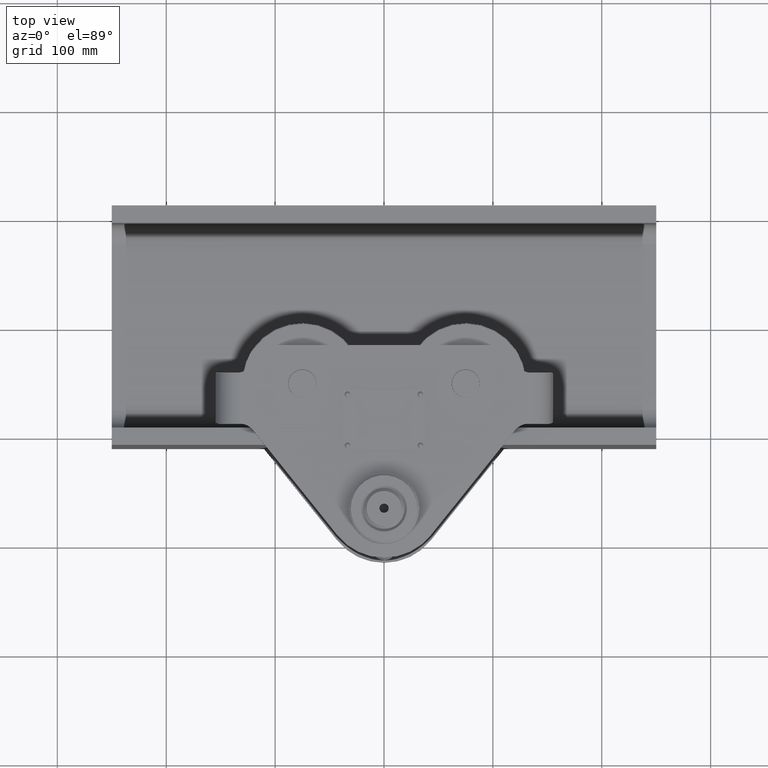
[diagram: clean part render]
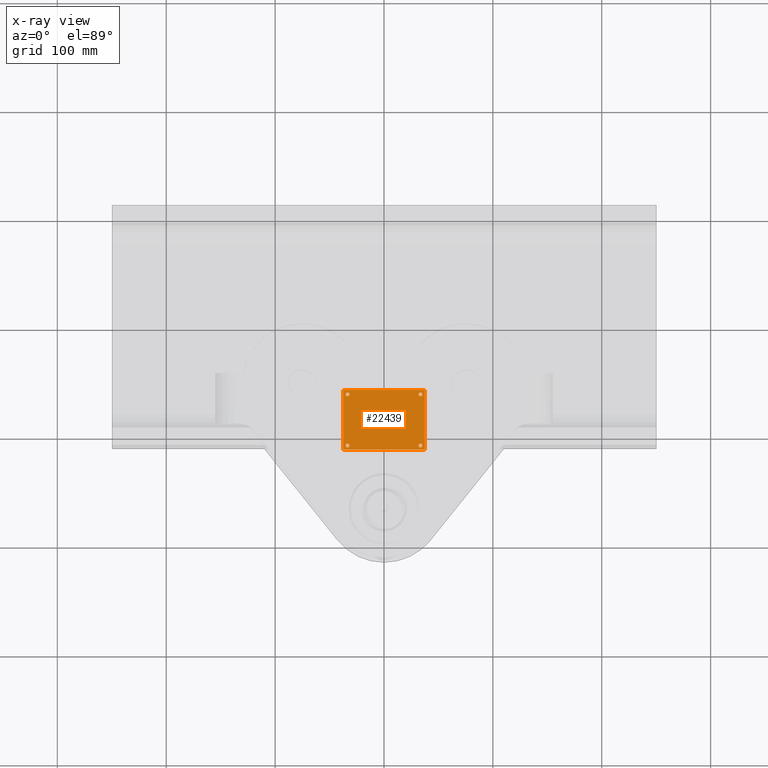
[diagram: x-ray — body ghosted, one internal face saturated and labeled with its STEP entity id]
A machine part, top view, then the same camera in x-ray: the body is ghosted and one INTERNAL B-rep face — a face not visible from any outside direction — is saturated and labeled: STEP entity #22439.
In plain terms, the highlighted planar face has unit normal (0, 0, -1).
Its self-contained STEP definition (entity closure, byte-faithful):
#177 = ORIENTED_EDGE ( 'NONE', *, *, #33637, .T. ) ;
#367 = VERTEX_POINT ( 'NONE', #12895 ) ;
#681 = CIRCLE ( 'NONE', #36995, 1.749999999999994700 ) ;
#760 = AXIS2_PLACEMENT_3D ( 'NONE', #8614, #29847, #11676 ) ;
#769 = CARTESIAN_POINT ( 'NONE',  ( -31.75000000000013900, -110.9999999999999000, 136.9999999999993700 ) ) ;
#1262 = CARTESIAN_POINT ( 'NONE',  ( -37.50000000000014200, -59.99999999999990800, 136.9999999999993700 ) ) ;
#1635 = VERTEX_POINT ( 'NONE', #38411 ) ;
#1852 = LINE ( 'NONE', #36537, #31236 ) ;
#2757 = ORIENTED_EDGE ( 'NONE', *, *, #37545, .T. ) ;
#2806 = CARTESIAN_POINT ( 'NONE',  ( -37.50000000000014200, -114.9999999999999100, 136.9999999999993700 ) ) ;
#2876 = AXIS2_PLACEMENT_3D ( 'NONE', #8532, #35830, #20911 ) ;
#3730 = DIRECTION ( 'NONE',  ( 0.0000000000000000000, 0.0000000000000000000, 1.000000000000000000 ) ) ;
#4148 = EDGE_LOOP ( 'NONE', ( #177, #27262 ) ) ;
#4361 = CARTESIAN_POINT ( 'NONE',  ( -35.25000000000014200, -63.99999999999990800, 136.9999999999993700 ) ) ;
#4561 = CIRCLE ( 'NONE', #35099, 1.750000000000001600 ) ;
#4821 = VERTEX_POINT ( 'NONE', #30212 ) ;
#4890 = CARTESIAN_POINT ( 'NONE',  ( 33.49999999999986500, -110.9999999999999000, 136.9999999999993700 ) ) ;
#4968 = LINE ( 'NONE', #2806, #27293 ) ;
#5121 = EDGE_CURVE ( 'NONE', #22739, #367, #34959, .T. ) ;
#5186 = VERTEX_POINT ( 'NONE', #20788 ) ;
#5289 = DIRECTION ( 'NONE',  ( 1.000000000000000000, 0.0000000000000000000, 0.0000000000000000000 ) ) ;
#5744 = CIRCLE ( 'NONE', #2876, 1.750000000000001600 ) ;
#5975 = DIRECTION ( 'NONE',  ( -0.0000000000000000000, -1.000000000000000000, -0.0000000000000000000 ) ) ;
#6057 = ORIENTED_EDGE ( 'NONE', *, *, #5121, .F. ) ;
#6400 = CARTESIAN_POINT ( 'NONE',  ( -33.50000000000014200, -110.9999999999999000, 136.9999999999993700 ) ) ;
#7481 = CIRCLE ( 'NONE', #760, 1.749999999999994700 ) ;
#7670 = CARTESIAN_POINT ( 'NONE',  ( -33.50000000000014200, -63.99999999999990800, 136.9999999999993700 ) ) ;
#8356 = FACE_OUTER_BOUND ( 'NONE', #23399, .T. ) ;
#8532 = CARTESIAN_POINT ( 'NONE',  ( -33.50000000000014200, -63.99999999999990800, 136.9999999999993700 ) ) ;
#8614 = CARTESIAN_POINT ( 'NONE',  ( 33.49999999999986500, -110.9999999999999000, 136.9999999999993700 ) ) ;
#8841 = ORIENTED_EDGE ( 'NONE', *, *, #23125, .T. ) ;
#10775 = VERTEX_POINT ( 'NONE', #24427 ) ;
#11274 = DIRECTION ( 'NONE',  ( 1.000000000000000000, 0.0000000000000000000, 0.0000000000000000000 ) ) ;
#11676 = DIRECTION ( 'NONE',  ( 1.000000000000000000, 0.0000000000000000000, 0.0000000000000000000 ) ) ;
#12055 = VERTEX_POINT ( 'NONE', #4361 ) ;
#12622 = FACE_BOUND ( 'NONE', #33063, .T. ) ;
#12895 = CARTESIAN_POINT ( 'NONE',  ( -37.50000000000014200, -59.99999999999990800, 136.9999999999993700 ) ) ;
#13121 = EDGE_CURVE ( 'NONE', #29029, #5186, #35311, .T. ) ;
#14099 = VERTEX_POINT ( 'NONE', #769 ) ;
#14172 = VERTEX_POINT ( 'NONE', #19368 ) ;
#14730 = DIRECTION ( 'NONE',  ( 0.0000000000000000000, 0.0000000000000000000, 1.000000000000000000 ) ) ;
#15703 = CARTESIAN_POINT ( 'NONE',  ( -37.50000000000014200, -114.9999999999999100, 136.9999999999993700 ) ) ;
#15941 = CARTESIAN_POINT ( 'NONE',  ( -37.50000000000014200, -59.99999999999990800, 136.9999999999993700 ) ) ;
#16084 = DIRECTION ( 'NONE',  ( 0.0000000000000000000, 0.0000000000000000000, -1.000000000000000000 ) ) ;
#16321 = DIRECTION ( 'NONE',  ( 0.0000000000000000000, 1.000000000000000000, 0.0000000000000000000 ) ) ;
#16884 = CIRCLE ( 'NONE', #23601, 1.749999999999994700 ) ;
#17833 = EDGE_CURVE ( 'NONE', #12055, #14172, #28199, .T. ) ;
#18725 = CIRCLE ( 'NONE', #36745, 1.749999999999994700 ) ;
#19368 = CARTESIAN_POINT ( 'NONE',  ( -31.75000000000013900, -63.99999999999990800, 136.9999999999993700 ) ) ;
#20034 = AXIS2_PLACEMENT_3D ( 'NONE', #7670, #14730, #5289 ) ;
#20113 = EDGE_CURVE ( 'NONE', #14099, #4821, #4561, .T. ) ;
#20585 = ORIENTED_EDGE ( 'NONE', *, *, #13121, .F. ) ;
#20788 = CARTESIAN_POINT ( 'NONE',  ( 37.49999999999986500, -114.9999999999999100, 136.9999999999993700 ) ) ;
#20911 = DIRECTION ( 'NONE',  ( 1.000000000000000000, 0.0000000000000000000, 0.0000000000000000000 ) ) ;
#21140 = CARTESIAN_POINT ( 'NONE',  ( 33.49999999999986500, -63.99999999999990800, 136.9999999999993700 ) ) ;
#21245 = VECTOR ( 'NONE', #37716, 1000.000000000000000 ) ;
#21285 = DIRECTION ( 'NONE',  ( 1.000000000000000000, 0.0000000000000000000, 0.0000000000000000000 ) ) ;
#21503 = EDGE_LOOP ( 'NONE', ( #38660, #37314 ) ) ;
#21594 = VERTEX_POINT ( 'NONE', #28537 ) ;
#21869 = EDGE_CURVE ( 'NONE', #5186, #22739, #1852, .T. ) ;
#22035 = CARTESIAN_POINT ( 'NONE',  ( 31.74999999999986900, -63.99999999999990800, 136.9999999999993700 ) ) ;
#22439 = ADVANCED_FACE ( 'NONE', ( #27806, #38714, #12622, #29232, #8356 ), #28397, .T. ) ;
#22642 = EDGE_CURVE ( 'NONE', #10775, #1635, #16884, .T. ) ;
#22711 = ORIENTED_EDGE ( 'NONE', *, *, #17833, .T. ) ;
#22739 = VERTEX_POINT ( 'NONE', #31317 ) ;
#23125 = EDGE_CURVE ( 'NONE', #23427, #21594, #18725, .T. ) ;
#23399 = EDGE_LOOP ( 'NONE', ( #37042, #6057, #39350, #20585 ) ) ;
#23427 = VERTEX_POINT ( 'NONE', #22035 ) ;
#23601 = AXIS2_PLACEMENT_3D ( 'NONE', #4890, #35114, #25891 ) ;
#23853 = CARTESIAN_POINT ( 'NONE',  ( -33.50000000000014200, -110.9999999999999000, 136.9999999999993700 ) ) ;
#23992 = DIRECTION ( 'NONE',  ( 0.0000000000000000000, 0.0000000000000000000, 1.000000000000000000 ) ) ;
#24325 = EDGE_CURVE ( 'NONE', #14172, #12055, #5744, .T. ) ;
#24427 = CARTESIAN_POINT ( 'NONE',  ( 31.74999999999986900, -110.9999999999999000, 136.9999999999993700 ) ) ;
#25891 = DIRECTION ( 'NONE',  ( 1.000000000000000000, 0.0000000000000000000, 0.0000000000000000000 ) ) ;
#27262 = ORIENTED_EDGE ( 'NONE', *, *, #22642, .T. ) ;
#27293 = VECTOR ( 'NONE', #5975, 1000.000000000000000 ) ;
#27622 = DIRECTION ( 'NONE',  ( 1.000000000000000000, 0.0000000000000000000, 0.0000000000000000000 ) ) ;
#27806 = FACE_BOUND ( 'NONE', #4148, .T. ) ;
#28199 = CIRCLE ( 'NONE', #20034, 1.750000000000001600 ) ;
#28397 = PLANE ( 'NONE',  #28398 ) ;
#28398 = AXIS2_PLACEMENT_3D ( 'NONE', #15941, #16084, #37075 ) ;
#28537 = CARTESIAN_POINT ( 'NONE',  ( 35.24999999999985800, -63.99999999999990800, 136.9999999999993700 ) ) ;
#29029 = VERTEX_POINT ( 'NONE', #15703 ) ;
#29232 = FACE_BOUND ( 'NONE', #30389, .T. ) ;
#29501 = DIRECTION ( 'NONE',  ( 1.000000000000000000, 0.0000000000000000000, 0.0000000000000000000 ) ) ;
#29753 = AXIS2_PLACEMENT_3D ( 'NONE', #23853, #23992, #29501 ) ;
#29847 = DIRECTION ( 'NONE',  ( 0.0000000000000000000, 0.0000000000000000000, 1.000000000000000000 ) ) ;
#30212 = CARTESIAN_POINT ( 'NONE',  ( -35.25000000000014200, -110.9999999999999000, 136.9999999999993700 ) ) ;
#30389 = EDGE_LOOP ( 'NONE', ( #38047, #22711 ) ) ;
#30439 = CARTESIAN_POINT ( 'NONE',  ( -37.50000000000014200, -114.9999999999999100, 136.9999999999993700 ) ) ;
#30989 = CIRCLE ( 'NONE', #29753, 1.750000000000001600 ) ;
#31236 = VECTOR ( 'NONE', #16321, 1000.000000000000000 ) ;
#31317 = CARTESIAN_POINT ( 'NONE',  ( 37.49999999999986500, -59.99999999999990800, 136.9999999999993700 ) ) ;
#31513 = VECTOR ( 'NONE', #36897, 1000.000000000000000 ) ;
#33038 = DIRECTION ( 'NONE',  ( 0.0000000000000000000, 0.0000000000000000000, 1.000000000000000000 ) ) ;
#33063 = EDGE_LOOP ( 'NONE', ( #2757, #8841 ) ) ;
#33637 = EDGE_CURVE ( 'NONE', #1635, #10775, #7481, .T. ) ;
#34959 = LINE ( 'NONE', #1262, #21245 ) ;
#35099 = AXIS2_PLACEMENT_3D ( 'NONE', #6400, #3730, #27622 ) ;
#35114 = DIRECTION ( 'NONE',  ( 0.0000000000000000000, 0.0000000000000000000, 1.000000000000000000 ) ) ;
#35311 = LINE ( 'NONE', #30439, #31513 ) ;
#35830 = DIRECTION ( 'NONE',  ( 0.0000000000000000000, 0.0000000000000000000, 1.000000000000000000 ) ) ;
#36537 = CARTESIAN_POINT ( 'NONE',  ( 37.49999999999986500, -114.9999999999999100, 136.9999999999993700 ) ) ;
#36745 = AXIS2_PLACEMENT_3D ( 'NONE', #21140, #33038, #21285 ) ;
#36897 = DIRECTION ( 'NONE',  ( 1.000000000000000000, 0.0000000000000000000, 0.0000000000000000000 ) ) ;
#36995 = AXIS2_PLACEMENT_3D ( 'NONE', #38873, #38602, #11274 ) ;
#37042 = ORIENTED_EDGE ( 'NONE', *, *, #37783, .F. ) ;
#37075 = DIRECTION ( 'NONE',  ( -1.000000000000000000, 0.0000000000000000000, -0.0000000000000000000 ) ) ;
#37314 = ORIENTED_EDGE ( 'NONE', *, *, #39175, .T. ) ;
#37545 = EDGE_CURVE ( 'NONE', #21594, #23427, #681, .T. ) ;
#37716 = DIRECTION ( 'NONE',  ( -1.000000000000000000, -0.0000000000000000000, -0.0000000000000000000 ) ) ;
#37783 = EDGE_CURVE ( 'NONE', #367, #29029, #4968, .T. ) ;
#38047 = ORIENTED_EDGE ( 'NONE', *, *, #24325, .T. ) ;
#38411 = CARTESIAN_POINT ( 'NONE',  ( 35.24999999999985800, -110.9999999999999000, 136.9999999999993700 ) ) ;
#38602 = DIRECTION ( 'NONE',  ( 0.0000000000000000000, 0.0000000000000000000, 1.000000000000000000 ) ) ;
#38660 = ORIENTED_EDGE ( 'NONE', *, *, #20113, .T. ) ;
#38714 = FACE_BOUND ( 'NONE', #21503, .T. ) ;
#38873 = CARTESIAN_POINT ( 'NONE',  ( 33.49999999999986500, -63.99999999999990800, 136.9999999999993700 ) ) ;
#39175 = EDGE_CURVE ( 'NONE', #4821, #14099, #30989, .T. ) ;
#39350 = ORIENTED_EDGE ( 'NONE', *, *, #21869, .F. ) ;